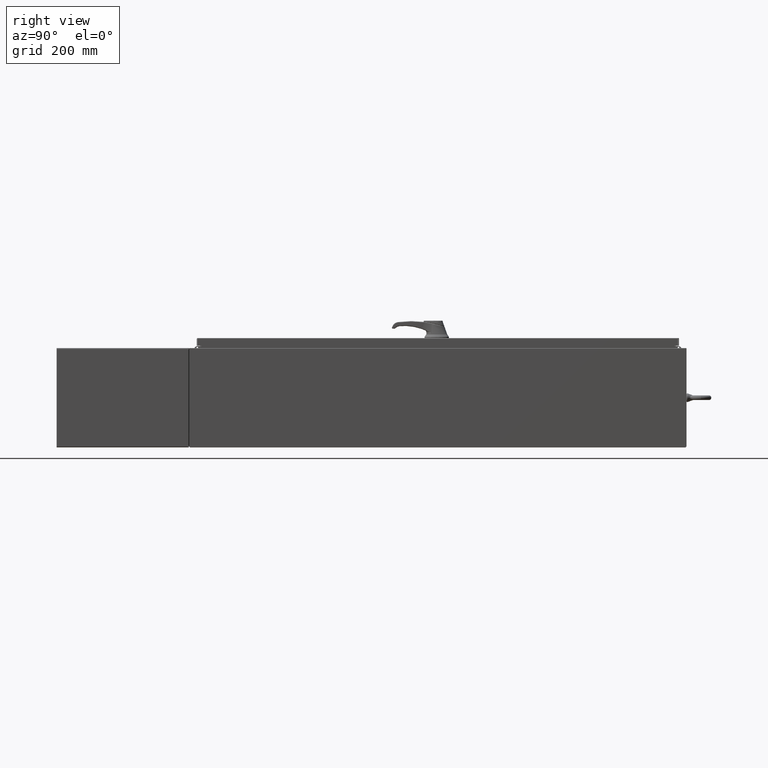
[diagram: clean part render]
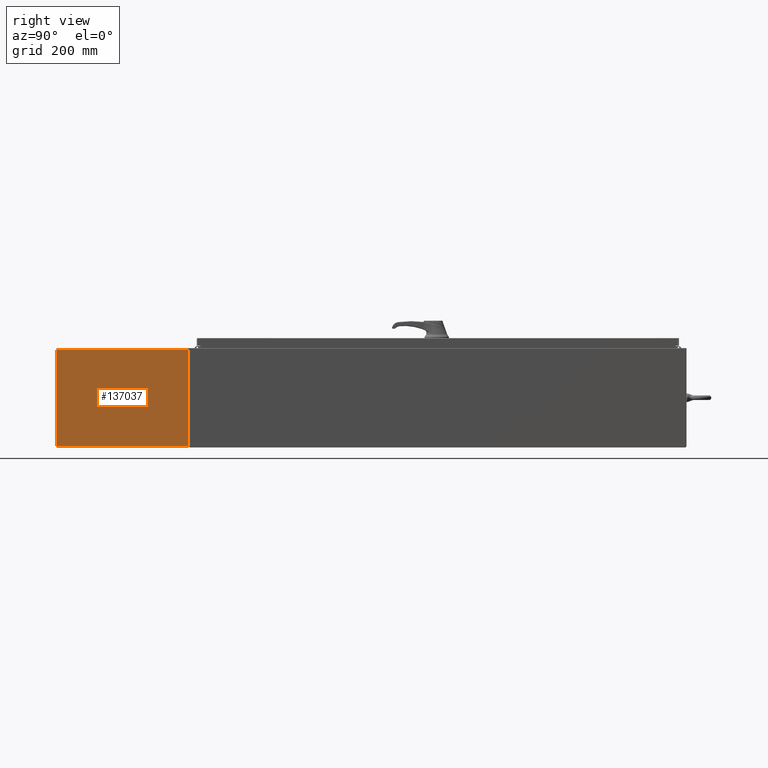
[diagram: same view with one face highlighted and labeled with its STEP entity id]
A machine part, right view. The second image highlights one B-rep face of the part: STEP entity #137037.
In plain terms, the highlighted planar face has unit normal (1, 0, -0).
Its self-contained STEP definition (entity closure, byte-faithful):
#2098 = VERTEX_POINT ( 'NONE', #40628 ) ;
#7407 = VECTOR ( 'NONE', #125602, 39.37007874015748100 ) ;
#18543 = EDGE_LOOP ( 'NONE', ( #98284, #33803, #34941, #119314 ) ) ;
#22575 = AXIS2_PLACEMENT_3D ( 'NONE', #24157, #35523, #114759 ) ;
#24157 = CARTESIAN_POINT ( 'NONE',  ( 5.999999999999996400, 8.000000000000001800, -0.1039999999999999800 ) ) ;
#26324 = CARTESIAN_POINT ( 'NONE',  ( -5.857000000000000200, -8.000000000000000000, -0.1039999999999998600 ) ) ;
#28467 = EDGE_CURVE ( 'NONE', #98365, #105161, #90963, .T. ) ;
#31236 = DIRECTION ( 'NONE',  ( 1.000000000000000000, 0.0000000000000000000, 0.0000000000000000000 ) ) ;
#31982 = EDGE_CURVE ( 'NONE', #105161, #2098, #67500, .T. ) ;
#33803 = ORIENTED_EDGE ( 'NONE', *, *, #31982, .T. ) ;
#34941 = ORIENTED_EDGE ( 'NONE', *, *, #98997, .T. ) ;
#35523 = DIRECTION ( 'NONE',  ( 0.0000000000000000000, 0.0000000000000000000, -1.000000000000000000 ) ) ;
#38472 = CARTESIAN_POINT ( 'NONE',  ( -5.857000000000000200, -7.999999999999999100, -0.1039999999999998600 ) ) ;
#40628 = CARTESIAN_POINT ( 'NONE',  ( 5.857000000000000200, 7.857000000000001100, -0.1039999999999998600 ) ) ;
#48250 = VECTOR ( 'NONE', #31236, 39.37007874015748100 ) ;
#55661 = CARTESIAN_POINT ( 'NONE',  ( 5.857000000000000200, 8.000000000000001800, -0.1039999999999998600 ) ) ;
#66989 = DIRECTION ( 'NONE',  ( -0.0000000000000000000, -1.000000000000000000, -0.0000000000000000000 ) ) ;
#67500 = LINE ( 'NONE', #80508, #7407 ) ;
#80508 = CARTESIAN_POINT ( 'NONE',  ( -5.857000000000000200, 7.857000000000001100, -0.1039999999999998600 ) ) ;
#84123 = VERTEX_POINT ( 'NONE', #120752 ) ;
#86767 = CARTESIAN_POINT ( 'NONE',  ( -5.857000000000000200, 7.856999999999998400, -0.1039999999999999000 ) ) ;
#90963 = LINE ( 'NONE', #38472, #94488 ) ;
#92759 = VECTOR ( 'NONE', #66989, 39.37007874015748100 ) ;
#94488 = VECTOR ( 'NONE', #117670, 39.37007874015748100 ) ;
#98284 = ORIENTED_EDGE ( 'NONE', *, *, #28467, .T. ) ;
#98365 = VERTEX_POINT ( 'NONE', #26324 ) ;
#98997 = EDGE_CURVE ( 'NONE', #2098, #84123, #122938, .T. ) ;
#99021 = CARTESIAN_POINT ( 'NONE',  ( -6.000000000000000900, -7.999999999999999100, -0.1039999999999999800 ) ) ;
#104947 = LINE ( 'NONE', #99021, #48250 ) ;
#105161 = VERTEX_POINT ( 'NONE', #86767 ) ;
#110583 = FACE_OUTER_BOUND ( 'NONE', #18543, .T. ) ;
#114759 = DIRECTION ( 'NONE',  ( -1.000000000000000000, 0.0000000000000000000, -0.0000000000000000000 ) ) ;
#117670 = DIRECTION ( 'NONE',  ( -0.0000000000000000000, 1.000000000000000000, -0.0000000000000000000 ) ) ;
#119029 = EDGE_CURVE ( 'NONE', #98365, #84123, #104947, .T. ) ;
#119314 = ORIENTED_EDGE ( 'NONE', *, *, #119029, .F. ) ;
#120752 = CARTESIAN_POINT ( 'NONE',  ( 5.857000000000000200, -7.999999999999989300, -0.1039999999999998600 ) ) ;
#122938 = LINE ( 'NONE', #55661, #92759 ) ;
#125593 = PLANE ( 'NONE',  #22575 ) ;
#125602 = DIRECTION ( 'NONE',  ( 1.000000000000000000, 0.0000000000000000000, 0.0000000000000000000 ) ) ;
#137037 = ADVANCED_FACE ( 'NONE', ( #110583 ), #125593, .T. ) ;